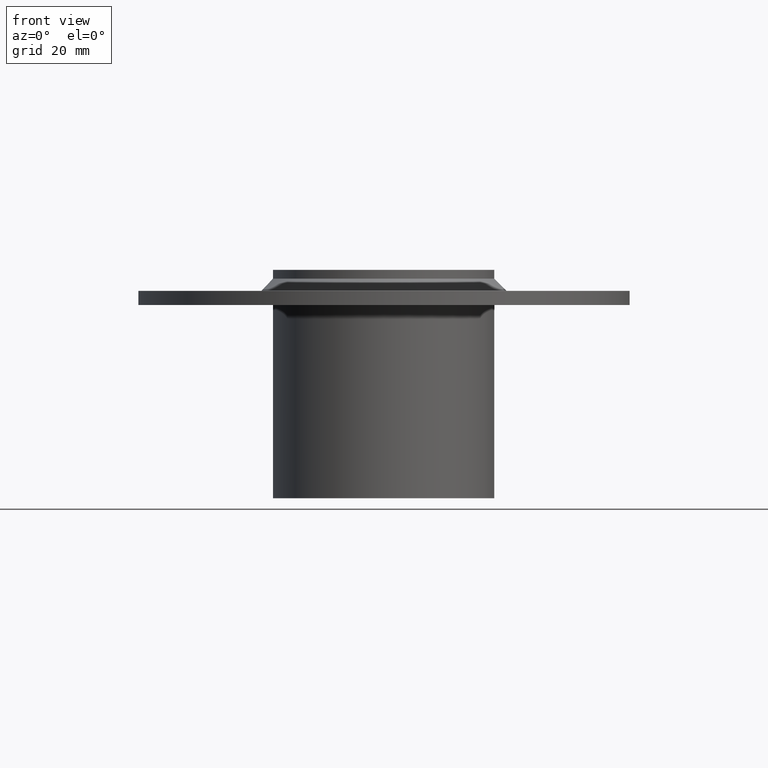
[diagram: clean part render]
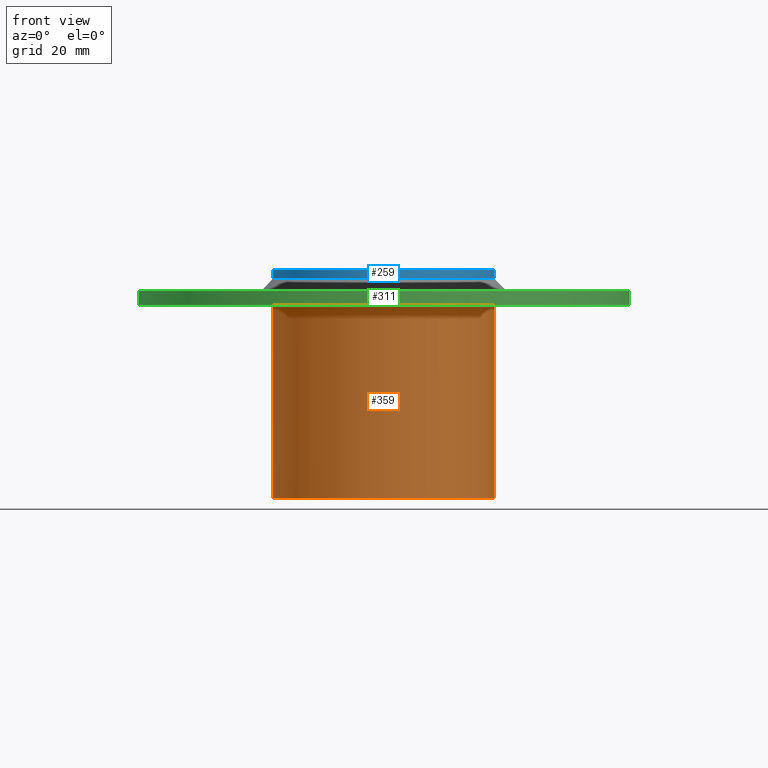
[diagram: same view with three faces highlighted in distinct colors, each labeled with its STEP entity id]
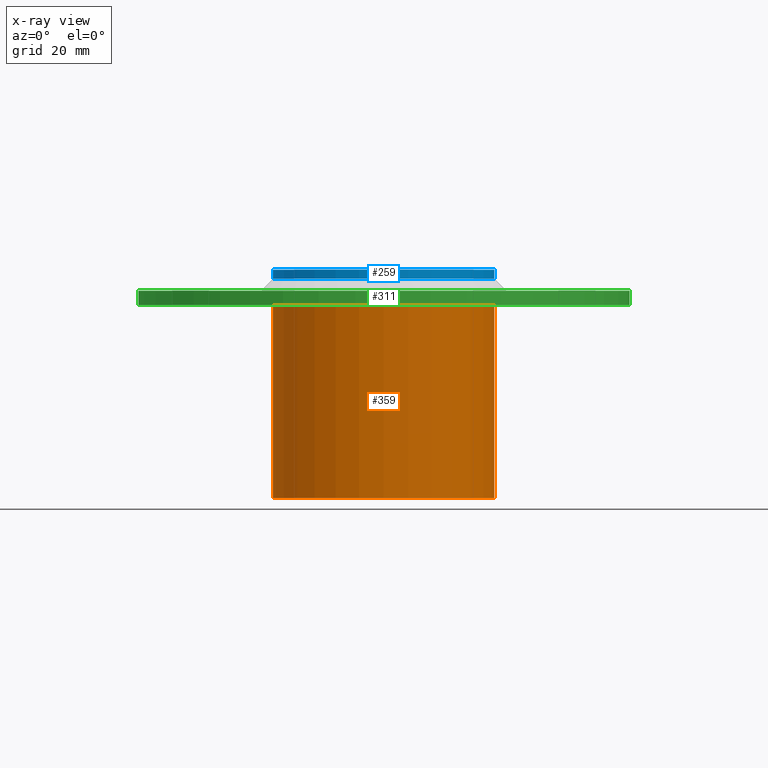
[diagram: x-ray of the same camera — body ghosted, the three highlighted faces saturated]
A machine part, front view with three faces highlighted in distinct colors.
The next image is the same camera in x-ray (body ghosted, the three faces saturated) — at least one of them is partly hidden behind the body in this view.
Their STEP definitions:

[orange] entity #359 — the highlighted cylindrical surface (bore or boss wall) has radius 31.5 mm, axis along (0, 0, -1).
#288=CARTESIAN_POINT('',(31.500000000000014,3.857637E-015,-10.0));
#289=VERTEX_POINT('',#288);
#290=CARTESIAN_POINT('',(0.0,0.0,-10.0));
#291=DIRECTION('',(0.0,0.0,-1.0));
#292=DIRECTION('',(-1.0,0.0,0.0));
#293=AXIS2_PLACEMENT_3D('',#290,#291,#292);
#294=CIRCLE('',#293,31.500000000000014);
#295=EDGE_CURVE('',#289,#289,#294,.T.);
#340=CARTESIAN_POINT('',(0.0,0.0,0.0));
#341=DIRECTION('',(0.0,0.0,-1.0));
#342=DIRECTION('',(-1.0,0.0,0.0));
#343=AXIS2_PLACEMENT_3D('',#340,#341,#342);
#344=CYLINDRICAL_SURFACE('',#343,31.500000000000014);
#345=ORIENTED_EDGE('',*,*,#295,.T.);
#346=EDGE_LOOP('',(#345));
#347=FACE_OUTER_BOUND('',#346,.T.);
#348=CARTESIAN_POINT('',(31.500000000000014,3.857637E-015,-65.0));
#349=VERTEX_POINT('',#348);
#350=CARTESIAN_POINT('',(0.0,0.0,-65.0));
#351=DIRECTION('',(0.0,0.0,-1.0));
#352=DIRECTION('',(-1.0,0.0,0.0));
#353=AXIS2_PLACEMENT_3D('',#350,#351,#352);
#354=CIRCLE('',#353,31.500000000000014);
#355=EDGE_CURVE('',#349,#349,#354,.T.);
#356=ORIENTED_EDGE('',*,*,#355,.F.);
#357=EDGE_LOOP('',(#356));
#358=FACE_BOUND('',#357,.T.);
#359=ADVANCED_FACE('',(#347,#358),#344,.T.);

[blue] entity #259 — the highlighted cylindrical surface (bore or boss wall) has radius 31.5 mm, axis along (0, 0, -1).
#196=CARTESIAN_POINT('',(31.500000000000014,-3.857637E-015,-2.500000000000002));
#197=VERTEX_POINT('',#196);
#198=CARTESIAN_POINT('',(0.0,0.0,-2.500000000000002));
#199=DIRECTION('',(0.0,0.0,-1.0));
#200=DIRECTION('',(-1.0,0.0,0.0));
#201=AXIS2_PLACEMENT_3D('',#198,#199,#200);
#202=CIRCLE('',#201,31.500000000000014);
#203=EDGE_CURVE('',#197,#197,#202,.T.);
#240=CARTESIAN_POINT('',(0.0,0.0,0.0));
#241=DIRECTION('',(0.0,0.0,-1.0));
#242=DIRECTION('',(-1.0,0.0,0.0));
#243=AXIS2_PLACEMENT_3D('',#240,#241,#242);
#244=CYLINDRICAL_SURFACE('',#243,31.500000000000014);
#245=CARTESIAN_POINT('',(31.500000000000014,3.857637E-015,0.0));
#246=VERTEX_POINT('',#245);
#247=CARTESIAN_POINT('',(0.0,0.0,0.0));
#248=DIRECTION('',(0.0,0.0,-1.0));
#249=DIRECTION('',(-1.0,0.0,0.0));
#250=AXIS2_PLACEMENT_3D('',#247,#248,#249);
#251=CIRCLE('',#250,31.500000000000014);
#252=EDGE_CURVE('',#246,#246,#251,.T.);
#253=ORIENTED_EDGE('',*,*,#252,.T.);
#254=EDGE_LOOP('',(#253));
#255=FACE_OUTER_BOUND('',#254,.T.);
#256=ORIENTED_EDGE('',*,*,#203,.F.);
#257=EDGE_LOOP('',(#256));
#258=FACE_BOUND('',#257,.T.);
#259=ADVANCED_FACE('',(#255,#258),#244,.T.);

[green] entity #311 — the highlighted cylindrical surface (bore or boss wall) has radius 70 mm, axis along (0, 0, 1).
#213=CARTESIAN_POINT('',(70.0,8.572528E-015,-6.000000000000002));
#214=VERTEX_POINT('',#213);
#215=CARTESIAN_POINT('',(0.0,0.0,-6.000000000000002));
#216=DIRECTION('',(0.0,0.0,1.0));
#217=DIRECTION('',(-1.0,0.0,0.0));
#218=AXIS2_PLACEMENT_3D('',#215,#216,#217);
#219=CIRCLE('',#218,70.0);
#220=EDGE_CURVE('',#214,#214,#219,.T.);
#265=CARTESIAN_POINT('',(70.0,8.572528E-015,-10.0));
#266=VERTEX_POINT('',#265);
#267=CARTESIAN_POINT('',(0.0,0.0,-10.0));
#268=DIRECTION('',(0.0,0.0,-1.0));
#269=DIRECTION('',(-1.0,0.0,0.0));
#270=AXIS2_PLACEMENT_3D('',#267,#268,#269);
#271=CIRCLE('',#270,70.0);
#272=EDGE_CURVE('',#266,#266,#271,.T.);
#300=CARTESIAN_POINT('',(0.0,0.0,-8.0));
#301=DIRECTION('',(0.0,0.0,1.0));
#302=DIRECTION('',(-1.0,0.0,0.0));
#303=AXIS2_PLACEMENT_3D('',#300,#301,#302);
#304=CYLINDRICAL_SURFACE('',#303,70.0);
#305=ORIENTED_EDGE('',*,*,#272,.F.);
#306=EDGE_LOOP('',(#305));
#307=FACE_OUTER_BOUND('',#306,.T.);
#308=ORIENTED_EDGE('',*,*,#220,.F.);
#309=EDGE_LOOP('',(#308));
#310=FACE_BOUND('',#309,.T.);
#311=ADVANCED_FACE('',(#307,#310),#304,.T.);